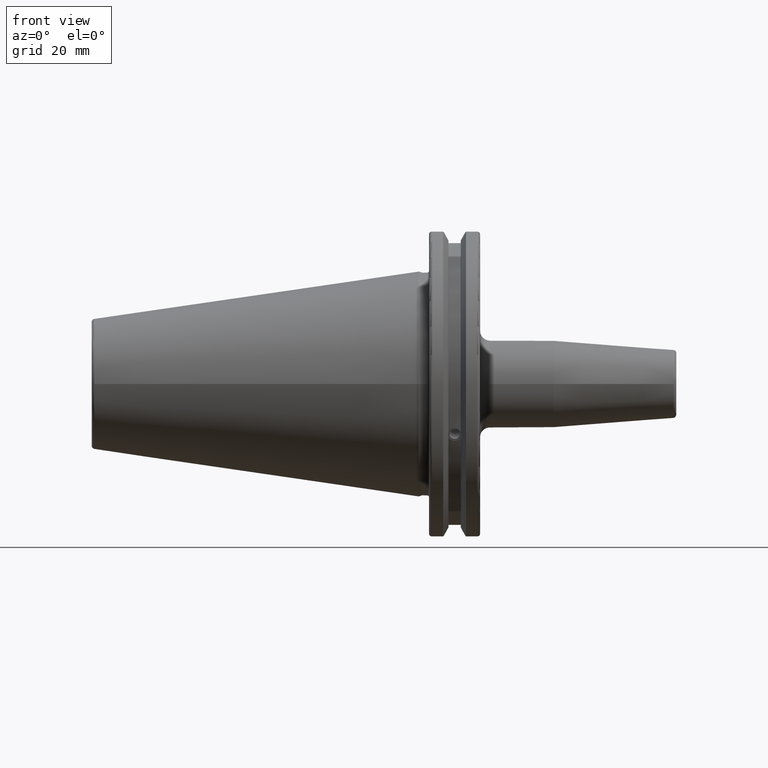
[diagram: clean part render]
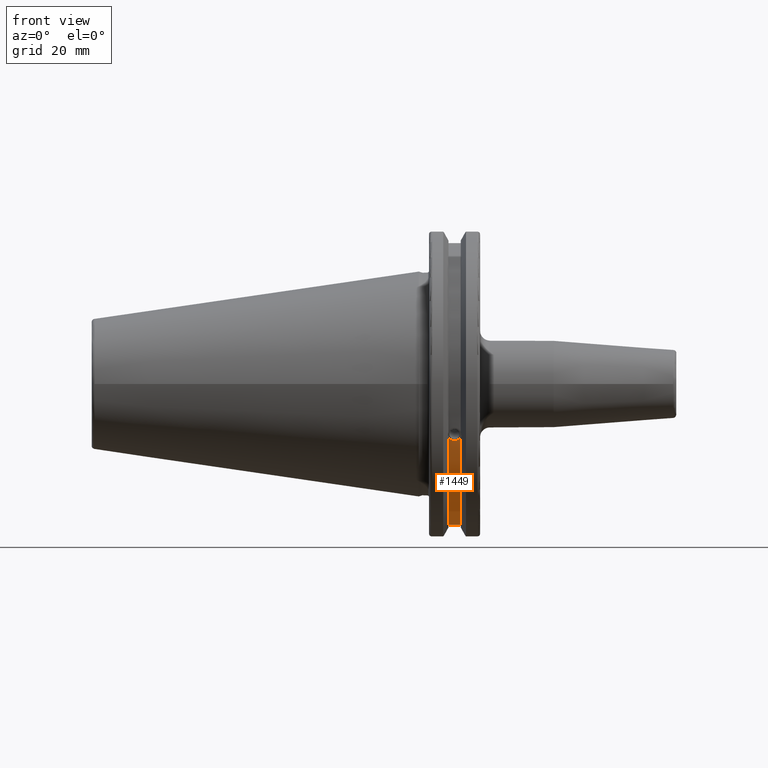
[diagram: same view with one face highlighted and labeled with its STEP entity id]
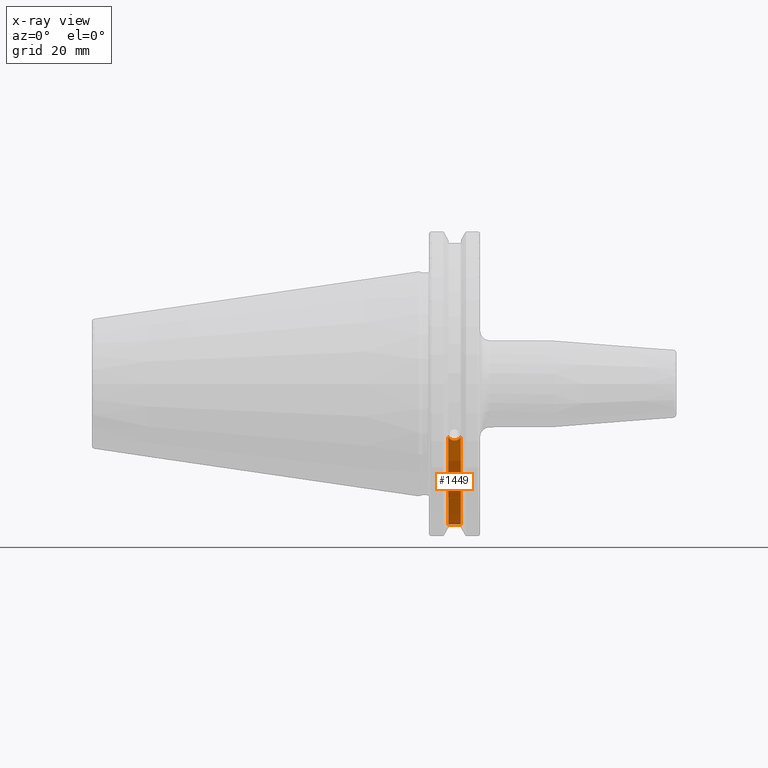
[diagram: x-ray of the same camera — body ghosted, the highlighted face saturated]
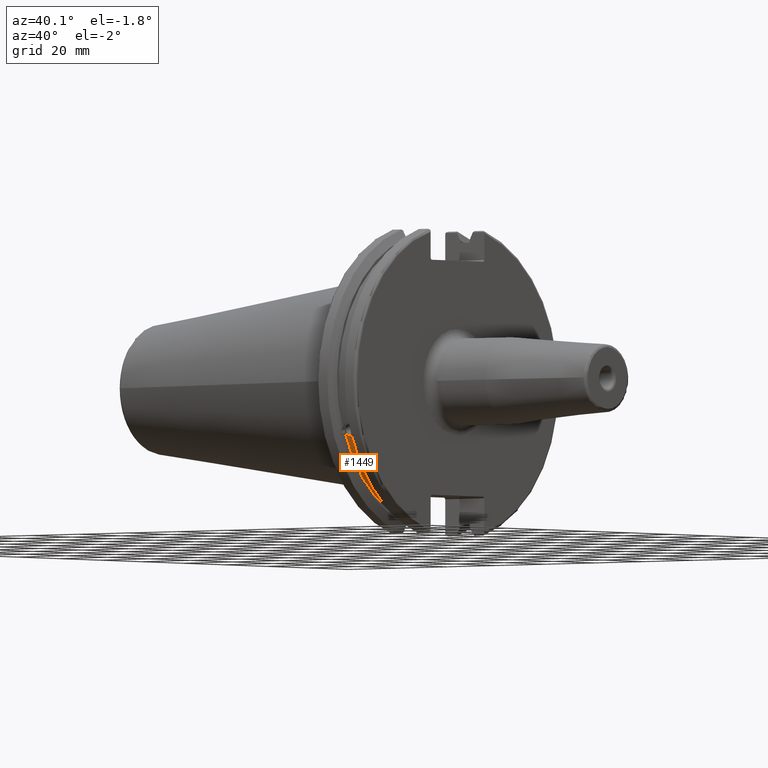
[diagram: same view with one face highlighted and labeled with its STEP entity id]
A machine part, front view. The second image highlights one B-rep face of the part: STEP entity #1449.
The next image is the same camera in x-ray: the body ghosted, the highlighted face saturated — about 0% of this face is hidden behind the body in this view.
A second angle (auxiliary view) of the same face is appended — the face is thin or edge-on in the first view.
In plain terms, the highlighted cylindrical surface (partial cylindrical patch) has radius 45.6435 mm, axis along (1, 0, 0).
Its self-contained STEP definition (entity closure, byte-faithful):
#44=B_SPLINE_CURVE_WITH_KNOTS('',3,(#2414,#2415,#2416,#2417,#2418,#2419,
#2420,#2421,#2422,#2423,#2424,#2425,#2426,#2427,#2428),.UNSPECIFIED.,.F.,
 .F.,(4,2,2,3,2,2,4),(-0.231381164054419,-0.158232381135623,-0.0791161905678117,
0.,0.0791161905678116,0.158232381135623,0.231381164054566),
 .UNSPECIFIED.);
#111=LINE('',#2485,#201);
#201=VECTOR('',#1840,10.);
#273=CYLINDRICAL_SURFACE('',#1589,45.6435);
#370=FACE_OUTER_BOUND('',#464,.T.);
#464=EDGE_LOOP('',(#1102,#1103,#1104,#1105));
#565=CIRCLE('',#1588,45.6435);
#566=CIRCLE('',#1590,45.6435);
#654=VERTEX_POINT('',#2411);
#655=VERTEX_POINT('',#2413);
#668=VERTEX_POINT('',#2479);
#669=VERTEX_POINT('',#2483);
#815=EDGE_CURVE('',#655,#654,#44,.T.);
#832=EDGE_CURVE('',#655,#668,#565,.T.);
#834=EDGE_CURVE('',#654,#669,#566,.T.);
#835=EDGE_CURVE('',#669,#668,#111,.T.);
#1102=ORIENTED_EDGE('',*,*,#815,.T.);
#1103=ORIENTED_EDGE('',*,*,#834,.T.);
#1104=ORIENTED_EDGE('',*,*,#835,.T.);
#1105=ORIENTED_EDGE('',*,*,#832,.F.);
#1449=ADVANCED_FACE('',(#370),#273,.T.);
#1588=AXIS2_PLACEMENT_3D('',#2480,#1833,#1834);
#1589=AXIS2_PLACEMENT_3D('',#2482,#1836,#1837);
#1590=AXIS2_PLACEMENT_3D('',#2484,#1838,#1839);
#1833=DIRECTION('center_axis',(1.,0.,0.));
#1834=DIRECTION('ref_axis',(0.,0.,-1.));
#1836=DIRECTION('center_axis',(1.,0.,0.));
#1837=DIRECTION('ref_axis',(0.,1.,0.));
#1838=DIRECTION('center_axis',(1.,0.,0.));
#1839=DIRECTION('ref_axis',(0.,0.,-1.));
#1840=DIRECTION('',(1.,0.,0.));
#2411=CARTESIAN_POINT('',(9.2191,-42.5884454651059,-16.4180816515115));
#2413=CARTESIAN_POINT('',(13.0491,-42.5884454651059,-16.4180816515115));
#2414=CARTESIAN_POINT('Ctrl Pts',(13.0491,-42.5884454651059,-16.4180816515115));
#2415=CARTESIAN_POINT('Ctrl Pts',(12.9428782240206,-42.5035323832641,-16.6383458840848));
#2416=CARTESIAN_POINT('Ctrl Pts',(12.791391924423,-42.4245077186417,-16.8380515255915));
#2417=CARTESIAN_POINT('Ctrl Pts',(12.4325949659982,-42.2908173017388,-17.1712159412199));
#2418=CARTESIAN_POINT('Ctrl Pts',(12.1964796719457,-42.2294695309474,-17.3208689126276));
#2419=CARTESIAN_POINT('Ctrl Pts',(11.6790940832128,-42.1475978938586,-17.5191491957165));
#2420=CARTESIAN_POINT('Ctrl Pts',(11.397820635226,-42.1271980081205,-17.5678194501937));
#2421=CARTESIAN_POINT('Ctrl Pts',(11.1341,-42.1271980081205,-17.5678194501937));
#2422=CARTESIAN_POINT('Ctrl Pts',(10.870379364774,-42.1271980081205,-17.5678194501937));
#2423=CARTESIAN_POINT('Ctrl Pts',(10.5891059167872,-42.1475978938586,-17.5191491957165));
#2424=CARTESIAN_POINT('Ctrl Pts',(10.0717203280543,-42.2294695309474,-17.3208689126276));
#2425=CARTESIAN_POINT('Ctrl Pts',(9.83560503400179,-42.2908173017388,-17.1712159412199));
#2426=CARTESIAN_POINT('Ctrl Pts',(9.47680807557665,-42.4245077186418,-16.8380515255912));
#2427=CARTESIAN_POINT('Ctrl Pts',(9.32532177598175,-42.5035323832622,-16.6383458840897));
#2428=CARTESIAN_POINT('Ctrl Pts',(9.21909999999999,-42.5884454651059,-16.4180816515115));
#2479=CARTESIAN_POINT('',(13.0491,-12.95,-43.7678716897452));
#2480=CARTESIAN_POINT('Origin',(13.0491,0.,0.));
#2482=CARTESIAN_POINT('Origin',(11.1341,0.,0.));
#2483=CARTESIAN_POINT('',(9.2191,-12.95,-43.7678716897452));
#2484=CARTESIAN_POINT('Origin',(9.2191,0.,0.));
#2485=CARTESIAN_POINT('',(11.1341,-12.95,-43.7678716897452));